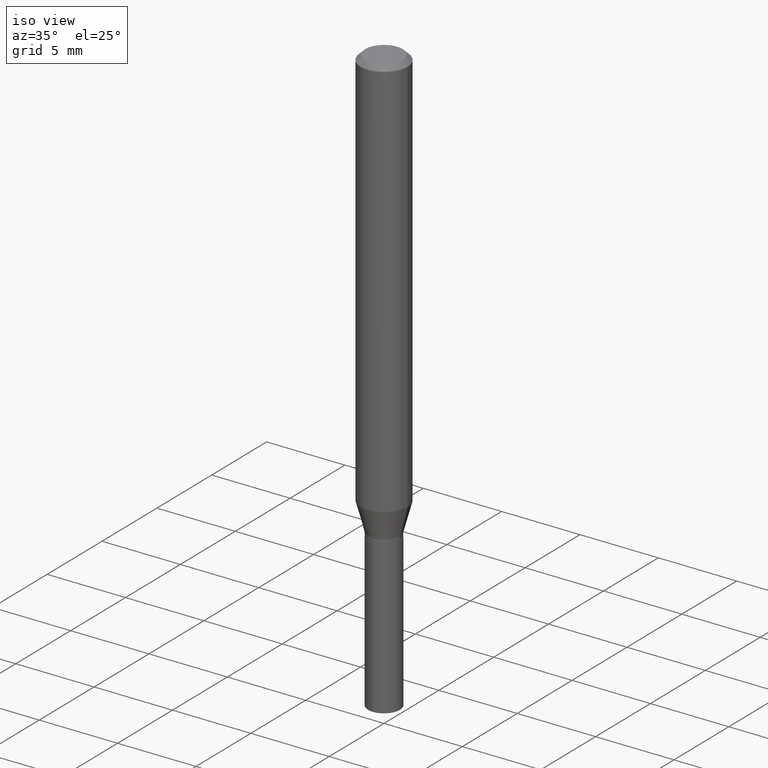
[diagram: clean part render]
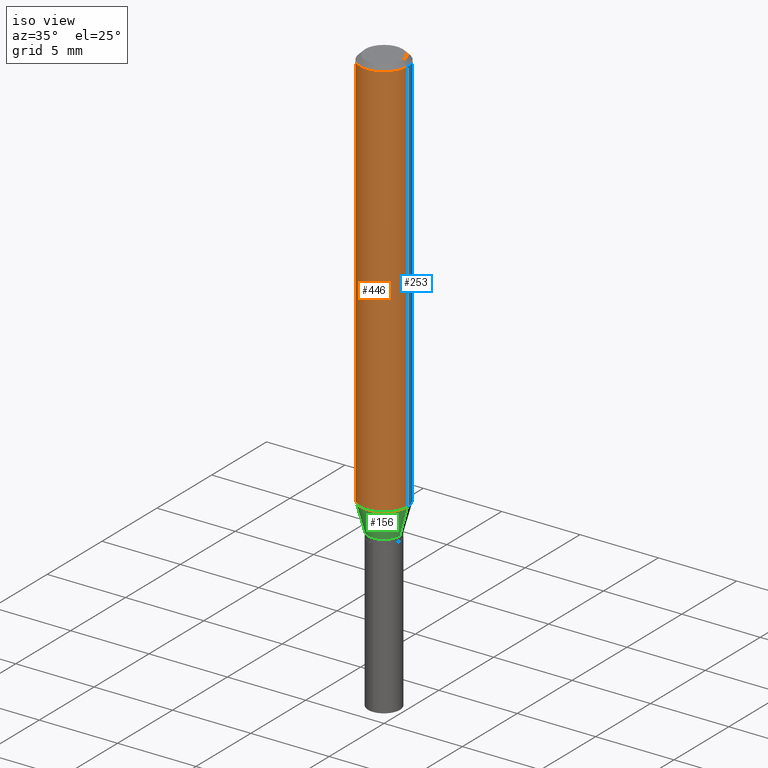
[diagram: same view with three faces highlighted in distinct colors, each labeled with its STEP entity id]
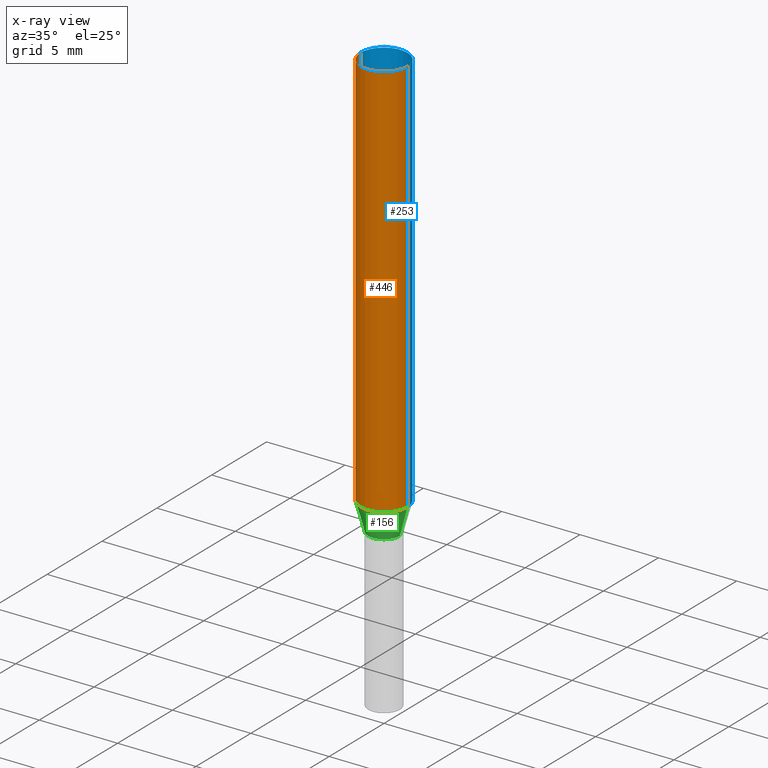
[diagram: x-ray of the same camera — body ghosted, the three highlighted faces saturated]
A machine part, iso view with three faces highlighted in distinct colors.
The next image is the same camera in x-ray (body ghosted, the three faces saturated) — at least one of them is partly hidden behind the body in this view.
Their STEP definitions:

[orange] entity #446 — the highlighted cylindrical surface (edge-blend (fillet) strip) has radius 1.4999 mm, axis along (-0, 0, 1).
#3 = ORIENTED_EDGE ( 'NONE', *, *, #240, .F. ) ;
#17 = DIRECTION ( 'NONE',  ( -2.445468806185136597E-29, 3.491481338843145583E-15, 1.000000000000000000 ) ) ;
#24 = CARTESIAN_POINT ( 'NONE',  ( 0.000000000000000000, 0.000000000000000000, 0.000000000000000000 ) ) ;
#33 = CARTESIAN_POINT ( 'NONE',  ( 0.05905000000000011628, -3.942992127585471317E-15, -1.011217829575434157 ) ) ;
#36 = DIRECTION ( 'NONE',  ( -2.445468806185136877E-29, 3.491481338843145188E-15, 1.000000000000000000 ) ) ;
#41 = CIRCLE ( 'NONE', #324, 0.05905000000000011628 ) ;
#49 = EDGE_CURVE ( 'NONE', #81, #389, #73, .T. ) ;
#65 = ORIENTED_EDGE ( 'NONE', *, *, #49, .T. ) ;
#73 = LINE ( 'NONE', #144, #141 ) ;
#81 = VERTEX_POINT ( 'NONE', #33 ) ;
#82 = LINE ( 'NONE', #381, #204 ) ;
#87 = VERTEX_POINT ( 'NONE', #332 ) ;
#92 = FACE_OUTER_BOUND ( 'NONE', #277, .T. ) ;
#113 = CARTESIAN_POINT ( 'NONE',  ( 2.888098660104665956E-31, -4.123439461173782728E-17, -0.01181000000000007912 ) ) ;
#141 = VECTOR ( 'NONE', #36, 39.37007874015748143 ) ;
#144 = CARTESIAN_POINT ( 'NONE',  ( 0.05905000000000006771, -4.123439461173745257E-16, 2.879382386107503723E-30 ) ) ;
#148 = ORIENTED_EDGE ( 'NONE', *, *, #408, .T. ) ;
#149 = AXIS2_PLACEMENT_3D ( 'NONE', #113, #344, #372 ) ;
#163 = DIRECTION ( 'NONE',  ( 1.000000000000000000, -6.982962677686266711E-15, 4.876176775795936353E-29 ) ) ;
#191 = CARTESIAN_POINT ( 'NONE',  ( 0.05905000000000000526, -4.535783407291119586E-16, -0.01181000000000007912 ) ) ;
#204 = VECTOR ( 'NONE', #335, 39.37007874015748143 ) ;
#236 = CARTESIAN_POINT ( 'NONE',  ( -0.05905000000000000526, -1.366365802573577175E-15, -0.01181000000000007912 ) ) ;
#240 = EDGE_CURVE ( 'NONE', #391, #389, #441, .T. ) ;
#243 = DIRECTION ( 'NONE',  ( -2.445468806185136597E-29, 3.491481338843145583E-15, 1.000000000000000000 ) ) ;
#261 = EDGE_CURVE ( 'NONE', #87, #391, #82, .T. ) ;
#277 = EDGE_LOOP ( 'NONE', ( #350, #148, #65, #3 ) ) ;
#283 = AXIS2_PLACEMENT_3D ( 'NONE', #24, #17, #163 ) ;
#319 = CYLINDRICAL_SURFACE ( 'NONE', #283, 0.05905000000000006771 ) ;
#324 = AXIS2_PLACEMENT_3D ( 'NONE', #352, #243, #388 ) ;
#332 = CARTESIAN_POINT ( 'NONE',  ( -0.05905000000000011628, -3.111072696001756510E-15, -1.011217829575434157 ) ) ;
#335 = DIRECTION ( 'NONE',  ( -2.445468806185136877E-29, 3.491481338843145188E-15, 1.000000000000000000 ) ) ;
#344 = DIRECTION ( 'NONE',  ( -2.445468806185136597E-29, 3.491481338843145583E-15, 1.000000000000000000 ) ) ;
#350 = ORIENTED_EDGE ( 'NONE', *, *, #261, .F. ) ;
#352 = CARTESIAN_POINT ( 'NONE',  ( 2.472901658484962006E-29, -3.530648181468096792E-15, -1.011217829575434157 ) ) ;
#372 = DIRECTION ( 'NONE',  ( 1.000000000000000000, -6.982962677686267499E-15, 0.000000000000000000 ) ) ;
#381 = CARTESIAN_POINT ( 'NONE',  ( -0.05905000000000006771, 4.195754854663396409E-16, -2.904631170795525045E-30 ) ) ;
#388 = DIRECTION ( 'NONE',  ( 1.000000000000000000, -6.982962677686266711E-15, 0.000000000000000000 ) ) ;
#389 = VERTEX_POINT ( 'NONE', #191 ) ;
#391 = VERTEX_POINT ( 'NONE', #236 ) ;
#408 = EDGE_CURVE ( 'NONE', #87, #81, #41, .T. ) ;
#441 = CIRCLE ( 'NONE', #149, 0.05905000000000000526 ) ;
#446 = ADVANCED_FACE ( 'NONE', ( #92 ), #319, .T. ) ;

[blue] entity #253 — the highlighted cylindrical surface (edge-blend (fillet) strip) has radius 1.4999 mm, axis along (-0, 0, 1).
#4 = AXIS2_PLACEMENT_3D ( 'NONE', #252, #247, #439 ) ;
#12 = CYLINDRICAL_SURFACE ( 'NONE', #354, 0.05905000000000006771 ) ;
#33 = CARTESIAN_POINT ( 'NONE',  ( 0.05905000000000011628, -3.942992127585471317E-15, -1.011217829575434157 ) ) ;
#36 = DIRECTION ( 'NONE',  ( -2.445468806185136877E-29, 3.491481338843145188E-15, 1.000000000000000000 ) ) ;
#45 = EDGE_CURVE ( 'NONE', #81, #87, #211, .T. ) ;
#49 = EDGE_CURVE ( 'NONE', #81, #389, #73, .T. ) ;
#66 = EDGE_CURVE ( 'NONE', #389, #391, #433, .T. ) ;
#73 = LINE ( 'NONE', #144, #141 ) ;
#81 = VERTEX_POINT ( 'NONE', #33 ) ;
#82 = LINE ( 'NONE', #381, #204 ) ;
#87 = VERTEX_POINT ( 'NONE', #332 ) ;
#101 = ORIENTED_EDGE ( 'NONE', *, *, #45, .T. ) ;
#119 = ORIENTED_EDGE ( 'NONE', *, *, #66, .F. ) ;
#141 = VECTOR ( 'NONE', #36, 39.37007874015748143 ) ;
#144 = CARTESIAN_POINT ( 'NONE',  ( 0.05905000000000006771, -4.123439461173745257E-16, 2.879382386107503723E-30 ) ) ;
#150 = DIRECTION ( 'NONE',  ( -2.445468806185136597E-29, 3.491481338843145583E-15, 1.000000000000000000 ) ) ;
#151 = EDGE_LOOP ( 'NONE', ( #101, #410, #119, #160 ) ) ;
#160 = ORIENTED_EDGE ( 'NONE', *, *, #49, .F. ) ;
#181 = DIRECTION ( 'NONE',  ( 1.000000000000000000, -6.982962677686267499E-15, 0.000000000000000000 ) ) ;
#191 = CARTESIAN_POINT ( 'NONE',  ( 0.05905000000000000526, -4.535783407291119586E-16, -0.01181000000000007912 ) ) ;
#204 = VECTOR ( 'NONE', #335, 39.37007874015748143 ) ;
#211 = CIRCLE ( 'NONE', #4, 0.05905000000000011628 ) ;
#234 = CARTESIAN_POINT ( 'NONE',  ( 0.000000000000000000, 0.000000000000000000, 0.000000000000000000 ) ) ;
#236 = CARTESIAN_POINT ( 'NONE',  ( -0.05905000000000000526, -1.366365802573577175E-15, -0.01181000000000007912 ) ) ;
#247 = DIRECTION ( 'NONE',  ( -2.445468806185136597E-29, 3.491481338843145583E-15, 1.000000000000000000 ) ) ;
#252 = CARTESIAN_POINT ( 'NONE',  ( 2.472901658484962006E-29, -3.530648181468096792E-15, -1.011217829575434157 ) ) ;
#253 = ADVANCED_FACE ( 'NONE', ( #311 ), #12, .T. ) ;
#261 = EDGE_CURVE ( 'NONE', #87, #391, #82, .T. ) ;
#263 = DIRECTION ( 'NONE',  ( -2.445468806185136597E-29, 3.491481338843145583E-15, 1.000000000000000000 ) ) ;
#302 = CARTESIAN_POINT ( 'NONE',  ( 2.888098660104665956E-31, -4.123439461173782728E-17, -0.01181000000000007912 ) ) ;
#306 = DIRECTION ( 'NONE',  ( 1.000000000000000000, -6.982962677686266711E-15, 4.876176775795936353E-29 ) ) ;
#311 = FACE_OUTER_BOUND ( 'NONE', #151, .T. ) ;
#332 = CARTESIAN_POINT ( 'NONE',  ( -0.05905000000000011628, -3.111072696001756510E-15, -1.011217829575434157 ) ) ;
#335 = DIRECTION ( 'NONE',  ( -2.445468806185136877E-29, 3.491481338843145188E-15, 1.000000000000000000 ) ) ;
#347 = AXIS2_PLACEMENT_3D ( 'NONE', #302, #263, #181 ) ;
#354 = AXIS2_PLACEMENT_3D ( 'NONE', #234, #150, #306 ) ;
#381 = CARTESIAN_POINT ( 'NONE',  ( -0.05905000000000006771, 4.195754854663396409E-16, -2.904631170795525045E-30 ) ) ;
#389 = VERTEX_POINT ( 'NONE', #191 ) ;
#391 = VERTEX_POINT ( 'NONE', #236 ) ;
#410 = ORIENTED_EDGE ( 'NONE', *, *, #261, .T. ) ;
#433 = CIRCLE ( 'NONE', #347, 0.05905000000000000526 ) ;
#439 = DIRECTION ( 'NONE',  ( 1.000000000000000000, -6.982962677686266711E-15, 0.000000000000000000 ) ) ;

[green] entity #156 — the highlighted conical surface has half-angle 15 deg.
#6 = DIRECTION ( 'NONE',  ( 0.2588190451025213501, 1.565188264969621968E-15, 0.9659258262890682012 ) ) ;
#31 = CARTESIAN_POINT ( 'NONE',  ( 0.03994999999999999940, -4.058497908271271635E-15, -1.082500000000000018 ) ) ;
#33 = CARTESIAN_POINT ( 'NONE',  ( 0.05905000000000011628, -3.942992127585471317E-15, -1.011217829575434157 ) ) ;
#41 = CIRCLE ( 'NONE', #324, 0.05905000000000011628 ) ;
#62 = CARTESIAN_POINT ( 'NONE',  ( -0.03994999999999999940, -3.515742744059892874E-15, -1.082500000000000018 ) ) ;
#67 = FACE_OUTER_BOUND ( 'NONE', #463, .T. ) ;
#75 = LINE ( 'NONE', #367, #362 ) ;
#78 = EDGE_CURVE ( 'NONE', #470, #123, #276, .T. ) ;
#81 = VERTEX_POINT ( 'NONE', #33 ) ;
#87 = VERTEX_POINT ( 'NONE', #332 ) ;
#98 = CONICAL_SURFACE ( 'NONE', #278, 0.03994999999999999940, 0.2617993877991500740 ) ;
#112 = VECTOR ( 'NONE', #351, 39.37007874015747433 ) ;
#123 = VERTEX_POINT ( 'NONE', #31 ) ;
#140 = DIRECTION ( 'NONE',  ( -2.445468806185136597E-29, 3.491481338843145583E-15, 1.000000000000000000 ) ) ;
#156 = ADVANCED_FACE ( 'NONE', ( #67 ), #98, .T. ) ;
#174 = AXIS2_PLACEMENT_3D ( 'NONE', #259, #447, #178 ) ;
#178 = DIRECTION ( 'NONE',  ( 1.000000000000000000, -6.982962677686263555E-15, 0.000000000000000000 ) ) ;
#206 = EDGE_CURVE ( 'NONE', #123, #81, #75, .T. ) ;
#209 = DIRECTION ( 'NONE',  ( 1.000000000000000000, -6.982962677686263555E-15, 0.000000000000000000 ) ) ;
#243 = DIRECTION ( 'NONE',  ( -2.445468806185136597E-29, 3.491481338843145583E-15, 1.000000000000000000 ) ) ;
#259 = CARTESIAN_POINT ( 'NONE',  ( 2.647219982695410164E-29, -3.779528549297705110E-15, -1.082500000000000018 ) ) ;
#276 = CIRCLE ( 'NONE', #174, 0.03994999999999999940 ) ;
#278 = AXIS2_PLACEMENT_3D ( 'NONE', #484, #140, #209 ) ;
#291 = ORIENTED_EDGE ( 'NONE', *, *, #408, .F. ) ;
#322 = ORIENTED_EDGE ( 'NONE', *, *, #206, .T. ) ;
#324 = AXIS2_PLACEMENT_3D ( 'NONE', #352, #243, #388 ) ;
#332 = CARTESIAN_POINT ( 'NONE',  ( -0.05905000000000011628, -3.111072696001756510E-15, -1.011217829575434157 ) ) ;
#348 = ORIENTED_EDGE ( 'NONE', *, *, #78, .T. ) ;
#351 = DIRECTION ( 'NONE',  ( -0.2588190451025213501, 5.211531920934551042E-15, 0.9659258262890682012 ) ) ;
#352 = CARTESIAN_POINT ( 'NONE',  ( 2.472901658484962006E-29, -3.530648181468096792E-15, -1.011217829575434157 ) ) ;
#362 = VECTOR ( 'NONE', #6, 39.37007874015747433 ) ;
#367 = CARTESIAN_POINT ( 'NONE',  ( 0.03994999999999999940, -4.058497908271271635E-15, -1.082500000000000018 ) ) ;
#383 = LINE ( 'NONE', #474, #112 ) ;
#388 = DIRECTION ( 'NONE',  ( 1.000000000000000000, -6.982962677686266711E-15, 0.000000000000000000 ) ) ;
#408 = EDGE_CURVE ( 'NONE', #87, #81, #41, .T. ) ;
#417 = ORIENTED_EDGE ( 'NONE', *, *, #442, .F. ) ;
#442 = EDGE_CURVE ( 'NONE', #470, #87, #383, .T. ) ;
#447 = DIRECTION ( 'NONE',  ( -2.445468806185136597E-29, 3.491481338843145583E-15, 1.000000000000000000 ) ) ;
#463 = EDGE_LOOP ( 'NONE', ( #417, #348, #322, #291 ) ) ;
#470 = VERTEX_POINT ( 'NONE', #62 ) ;
#474 = CARTESIAN_POINT ( 'NONE',  ( -0.03994999999999999940, -3.495666726361545189E-15, -1.082500000000000018 ) ) ;
#484 = CARTESIAN_POINT ( 'NONE',  ( 2.647219982695410164E-29, -3.779528549297705110E-15, -1.082500000000000018 ) ) ;